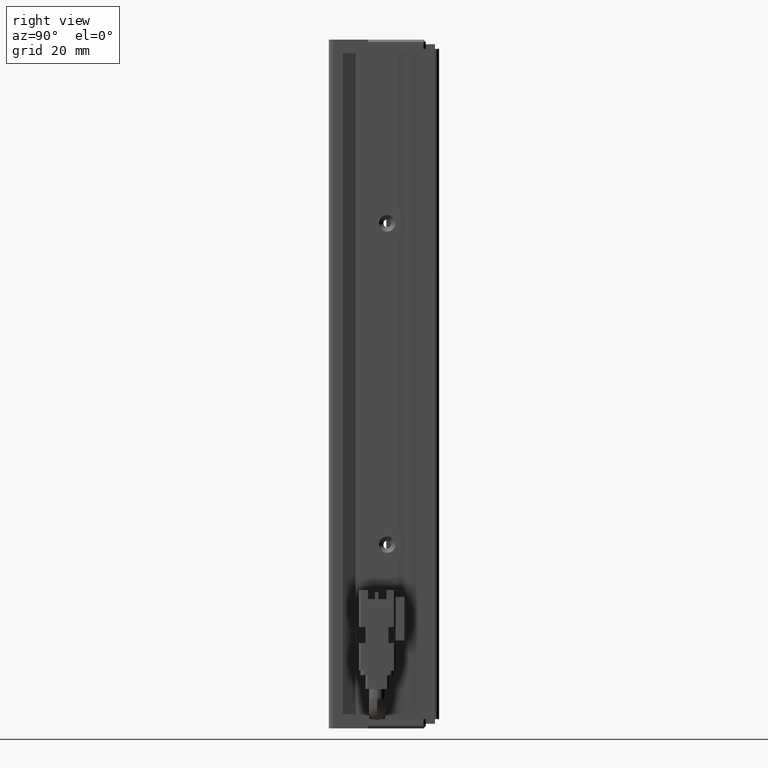
[diagram: clean part render]
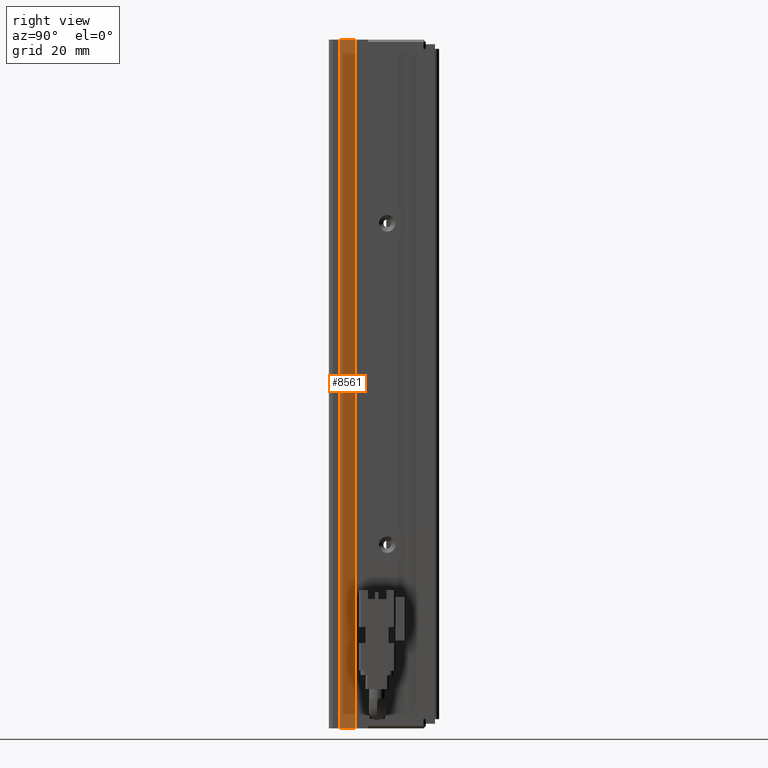
[diagram: same view with one face highlighted and labeled with its STEP entity id]
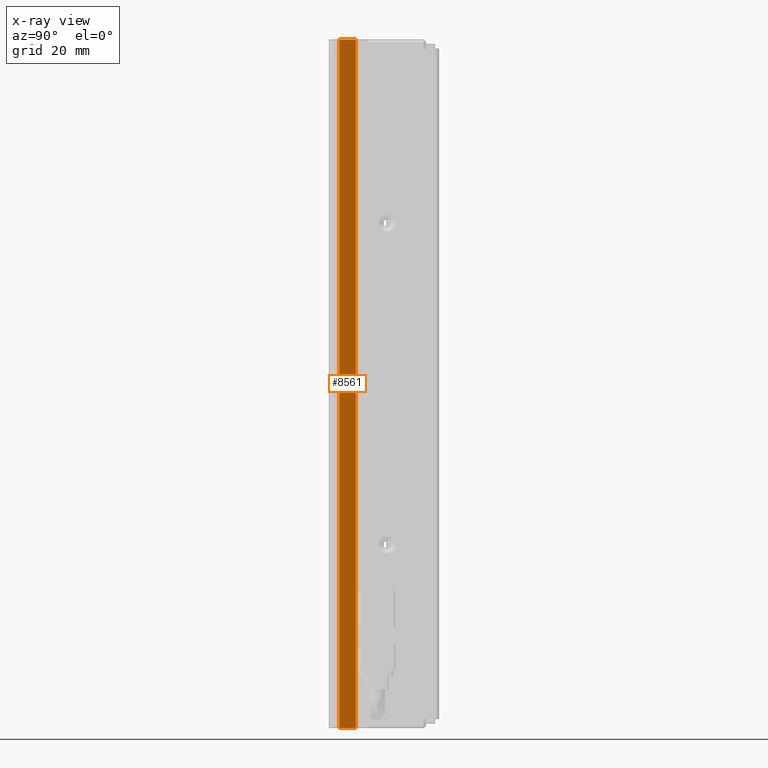
[diagram: x-ray of the same camera — body ghosted, the highlighted face saturated]
A machine part, right view. The second image highlights one B-rep face of the part: STEP entity #8561.
The next image is the same camera in x-ray: the body ghosted, the highlighted face saturated — about 0% of this face is hidden behind the body in this view.
In plain terms, the highlighted planar face has unit normal (1, 0, -0).
Its self-contained STEP definition (entity closure, byte-faithful):
#297 = VERTEX_POINT ( 'NONE', #38391 ) ;
#3176 = VECTOR ( 'NONE', #17551, 1000.000000000000000 ) ;
#4471 = DIRECTION ( 'NONE',  ( -0.0000000000000000000, 0.0000000000000000000, -1.000000000000000000 ) ) ;
#6574 = FACE_OUTER_BOUND ( 'NONE', #8477, .T. ) ;
#7361 = CARTESIAN_POINT ( 'NONE',  ( 46.62537974683541400, 16.79073232304837400, -40.00000000000000700 ) ) ;
#8477 = EDGE_LOOP ( 'NONE', ( #30437, #40982, #23290, #27048 ) ) ;
#8561 = ADVANCED_FACE ( 'NONE', ( #6574 ), #37160, .T. ) ;
#10725 = CARTESIAN_POINT ( 'NONE',  ( 46.62537974683541400, 13.29073232304837000, -40.00000000000000700 ) ) ;
#11817 = LINE ( 'NONE', #7361, #3176 ) ;
#12382 = VECTOR ( 'NONE', #4471, 1000.000000000000000 ) ;
#14394 = DIRECTION ( 'NONE',  ( 0.0000000000000000000, 1.000000000000000000, -0.0000000000000000000 ) ) ;
#14758 = DIRECTION ( 'NONE',  ( 1.000000000000000000, 0.0000000000000000000, -0.0000000000000000000 ) ) ;
#14769 = VERTEX_POINT ( 'NONE', #38798 ) ;
#16717 = CARTESIAN_POINT ( 'NONE',  ( 46.62537974683541400, 13.29073232304837200, -40.00000000000000700 ) ) ;
#17551 = DIRECTION ( 'NONE',  ( 0.0000000000000000000, -0.0000000000000000000, 1.000000000000000000 ) ) ;
#18003 = DIRECTION ( 'NONE',  ( -0.0000000000000000000, 0.0000000000000000000, -1.000000000000000000 ) ) ;
#20366 = VECTOR ( 'NONE', #14394, 1000.000000000000000 ) ;
#20748 = CARTESIAN_POINT ( 'NONE',  ( 46.62537974683541400, 7.083797468354437600, -40.00000000000000700 ) ) ;
#22012 = LINE ( 'NONE', #24187, #28614 ) ;
#22833 = EDGE_CURVE ( 'NONE', #26792, #14769, #39396, .T. ) ;
#23290 = ORIENTED_EDGE ( 'NONE', *, *, #35644, .T. ) ;
#24187 = CARTESIAN_POINT ( 'NONE',  ( 46.62537974683541400, 7.083797468354437600, -40.00000000000000700 ) ) ;
#25284 = VERTEX_POINT ( 'NONE', #27223 ) ;
#26792 = VERTEX_POINT ( 'NONE', #16717 ) ;
#27048 = ORIENTED_EDGE ( 'NONE', *, *, #35100, .T. ) ;
#27223 = CARTESIAN_POINT ( 'NONE',  ( 46.62537974683541400, 16.79073232304837400, -190.0000000000000000 ) ) ;
#28614 = VECTOR ( 'NONE', #37309, 1000.000000000000000 ) ;
#30437 = ORIENTED_EDGE ( 'NONE', *, *, #34711, .F. ) ;
#34104 = AXIS2_PLACEMENT_3D ( 'NONE', #20748, #14758, #18003 ) ;
#34711 = EDGE_CURVE ( 'NONE', #26792, #297, #22012, .T. ) ;
#35100 = EDGE_CURVE ( 'NONE', #25284, #297, #11817, .T. ) ;
#35644 = EDGE_CURVE ( 'NONE', #14769, #25284, #38763, .T. ) ;
#37160 = PLANE ( 'NONE',  #34104 ) ;
#37309 = DIRECTION ( 'NONE',  ( 0.0000000000000000000, 1.000000000000000000, -0.0000000000000000000 ) ) ;
#38391 = CARTESIAN_POINT ( 'NONE',  ( 46.62537974683541400, 16.79073232304837400, -40.00000000000000700 ) ) ;
#38763 = LINE ( 'NONE', #40360, #20366 ) ;
#38798 = CARTESIAN_POINT ( 'NONE',  ( 46.62537974683541400, 13.29073232304837200, -190.0000000000000000 ) ) ;
#39396 = LINE ( 'NONE', #10725, #12382 ) ;
#40360 = CARTESIAN_POINT ( 'NONE',  ( 46.62537974683541400, 7.083797468354437600, -190.0000000000000000 ) ) ;
#40982 = ORIENTED_EDGE ( 'NONE', *, *, #22833, .T. ) ;